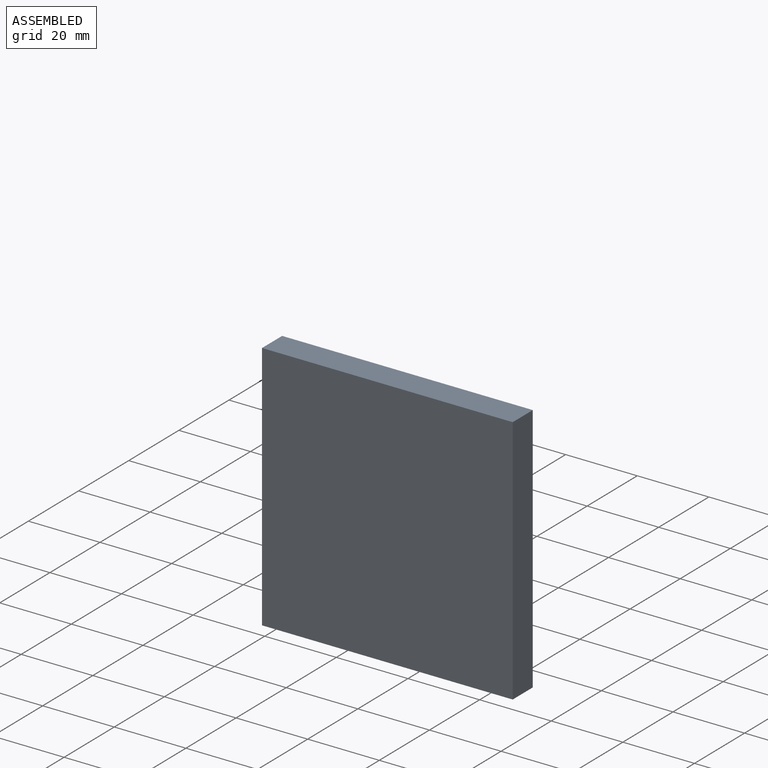
[diagram: assembled view]
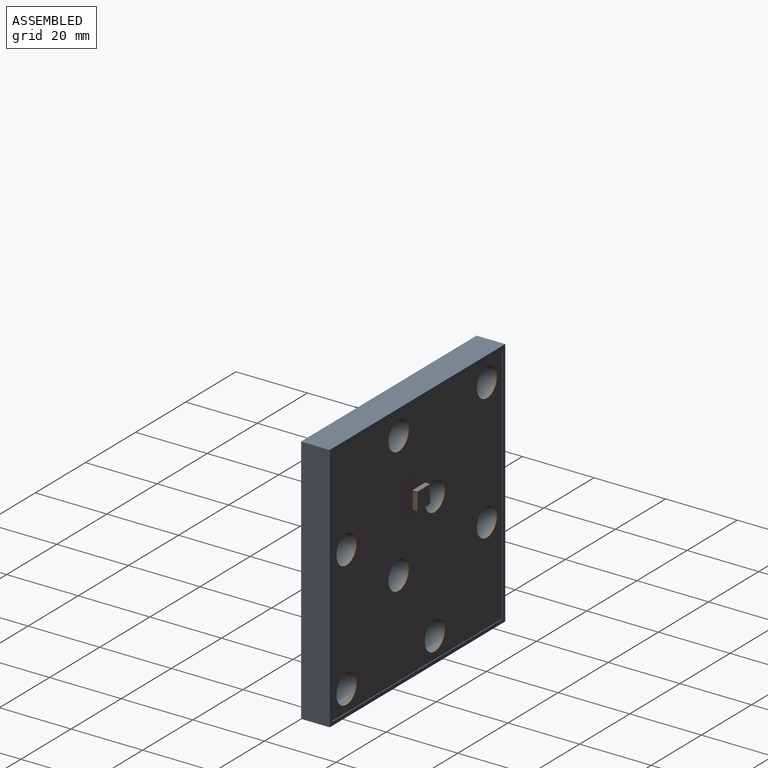
[diagram: assembled view, second angle]
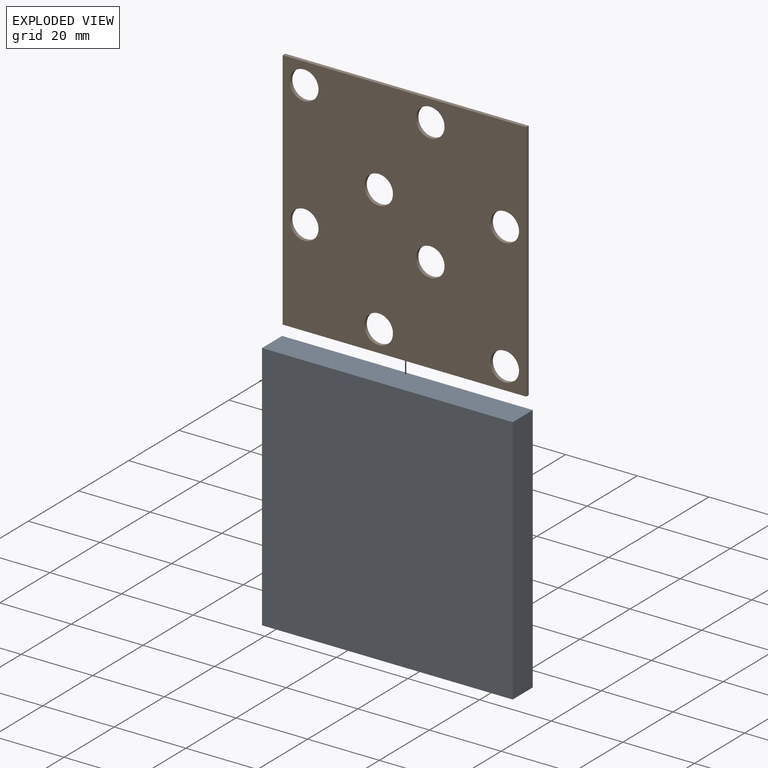
[diagram: exploded view]
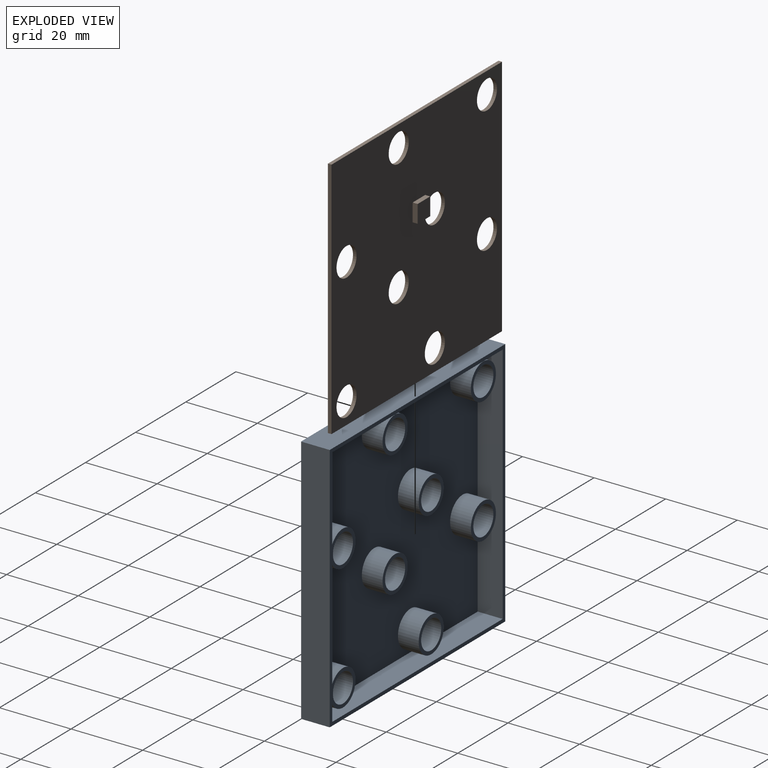
[diagram: exploded view, second angle]
ASSEMBLY  parts=2 mates=3
PART A: 43 faces, bbox 70x8x70 mm
  f0: plane 70x70mm, normal (0,1,0), area 276mm2, adj f1,f2,f3,f4,f6,f7,f8,f9
  f1: plane 70x8mm, normal (0,0,-1), area 560mm2, adj f0,f2,f4,f5
  f2: plane 70x8mm, normal (1,0,0), area 560mm2, adj f0,f1,f3,f5
  f3: plane 70x8mm, normal (0,0,1), area 560mm2, adj f0,f2,f4,f5
  f4: plane 70x8mm, normal (-1,0,0), area 560mm2, adj f0,f1,f3,f5
  f5: plane 70x70mm, normal (0,-1,0), area 4900mm2, adj f1,f2,f3,f4
  f6: plane 68x7mm, normal (0,0,1), area 476mm2, adj f0,f7,f9,f10
  f7: plane 68x7mm, normal (-1,0,0), area 476mm2, adj f0,f6,f8,f10
  f8: plane 68x7mm, normal (0,0,-1), area 476mm2, adj f0,f7,f9,f10
  f9: plane 68x7mm, normal (1,0,0), area 476mm2, adj f0,f6,f8,f10
  f10: plane 68x68mm, normal (0,1,0), area 3995.7mm2, adj f6,f7,f8,f9,f12,f16,f20,f24
  f11: cylinder r=4mm len=8mm, axis (0,-1,0), area 145.8mm2, adj f13,f14
  f12: cylinder r=5mm len=10mm, axis (0,-1,0), area 182.2mm2, adj f10,f13
  f13: plane 10x10mm, normal (0,1,0), area 28.3mm2, adj f11,f12
  f14: plane 8x8mm, normal (0,1,0), area 50.3mm2, adj f11
  f15: cylinder r=4mm len=8mm, axis (0,-1,0), area 145.8mm2, adj f17,f18
  f16: cylinder r=5mm len=10mm, axis (0,-1,0), area 182.2mm2, adj f10,f17
  f17: plane 10x10mm, normal (0,1,0), area 28.3mm2, adj f15,f16
  f18: plane 8x8mm, normal (0,1,0), area 50.3mm2, adj f15
  f19: cylinder r=4mm len=8mm, axis (0,-1,0), area 145.8mm2, adj f21,f22
  f20: cylinder r=5mm len=10mm, axis (0,-1,0), area 182.2mm2, adj f10,f21
  f21: plane 10x10mm, normal (0,1,0), area 28.3mm2, adj f19,f20
  f22: plane 8x8mm, normal (0,1,0), area 50.3mm2, adj f19
  f23: cylinder r=4mm len=8mm, axis (0,-1,0), area 145.8mm2, adj f25,f26
  f24: cylinder r=5mm len=10mm, axis (0,-1,0), area 182.2mm2, adj f10,f25
  f25: plane 10x10mm, normal (0,1,0), area 28.3mm2, adj f23,f24
  f26: plane 8x8mm, normal (0,1,0), area 50.3mm2, adj f23
  f27: cylinder r=4mm len=8mm, axis (0,-1,0), area 145.8mm2, adj f29,f30
  f28: cylinder r=5mm len=10mm, axis (0,-1,0), area 182.2mm2, adj f10,f29
  f29: plane 10x10mm, normal (0,1,0), area 28.3mm2, adj f27,f28
  f30: plane 8x8mm, normal (0,1,0), area 50.3mm2, adj f27
  f31: cylinder r=4mm len=8mm, axis (0,-1,0), area 145.8mm2, adj f33,f34
  f32: cylinder r=5mm len=10mm, axis (0,-1,0), area 182.2mm2, adj f10,f33
  f33: plane 10x10mm, normal (0,1,0), area 28.3mm2, adj f31,f32
  f34: plane 8x8mm, normal (0,1,0), area 50.3mm2, adj f31
  f35: cylinder r=4mm len=8mm, axis (0,-1,0), area 145.8mm2, adj f37,f38
  f36: cylinder r=5mm len=10mm, axis (0,-1,0), area 182.2mm2, adj f10,f37
  f37: plane 10x10mm, normal (0,1,0), area 28.3mm2, adj f35,f36
  f38: plane 8x8mm, normal (0,1,0), area 50.3mm2, adj f35
  f39: cylinder r=4mm len=8mm, axis (0,-1,0), area 145.8mm2, adj f41,f42
  f40: cylinder r=5mm len=10mm, axis (0,-1,0), area 182.2mm2, adj f10,f41
  f41: plane 10x10mm, normal (0,1,0), area 28.3mm2, adj f39,f40
  f42: plane 8x8mm, normal (0,1,0), area 50.3mm2, adj f39
PART B: 20 faces, bbox 68x2.4x68 mm
  f0: plane 68x1mm, normal (1,0,0), area 68mm2, adj f1,f3,f4,f5
  f1: plane 68x1mm, normal (0,0,1), area 68mm2, adj f0,f2,f4,f5
  f2: plane 68x1mm, normal (-1,0,0), area 68mm2, adj f1,f3,f4,f5
  f3: plane 68x1mm, normal (0,0,-1), area 68mm2, adj f0,f2,f4,f5
  f4: plane 68x68mm, normal (0,-1,0), area 4221.9mm2, adj f0,f1,f2,f3,f6,f7,f8,f9
  f5: plane 68x68mm, normal (0,1,0), area 4197mm2, adj f0,f1,f2,f3,f6,f7,f8,f9
  f6: cylinder r=4mm len=8mm, axis (0,1,0), area 25.1mm2, adj f4,f5
  f7: cylinder r=4mm len=8mm, axis (0,1,0), area 25.1mm2, adj f4,f5
  f8: cylinder r=4mm len=8mm, axis (0,1,0), area 25.1mm2, adj f4,f5
  f9: cylinder r=4mm len=8mm, axis (0,1,0), area 25.1mm2, adj f4,f5,f19
  f10: cylinder r=4mm len=8mm, axis (0,1,0), area 25.1mm2, adj f4,f5
  f11: cylinder r=4mm len=8mm, axis (0,1,0), area 25.1mm2, adj f4,f5
  f12: cylinder r=4mm len=8mm, axis (0,1,0), area 25.1mm2, adj f4,f5
  f13: cylinder r=4mm len=8mm, axis (0,1,0), area 25.1mm2, adj f4,f5
  f14: plane 5x1.4mm, normal (1,0,0), area 7mm2, adj f5,f15,f17,f18
  f15: plane 5x1.4mm, normal (0,0,-1), area 7mm2, adj f5,f14,f16,f18,f19
  f16: plane 5x1.4mm, normal (-1,0,0), area 7mm2, adj f5,f15,f17,f18,f19
  f17: plane 5x1.4mm, normal (0,0,1), area 7mm2, adj f5,f14,f16,f18
  f18: plane 5x5mm, normal (0,1,0), area 25mm2, adj f14,f15,f16,f17
  f19: plane 1.2x0.15mm, normal (0,-1,0), area 0.1mm2, adj f9,f15,f16
PLACE A t=(12.98,29.83,-8.99)mm
PLACE B t=(12.98,29.63,-8.99)mm
MATE planar B.f1 <-> A.f8  axis (0,0,1) through (12.98,29.13,25.01)mm
MATE planar A.f11 <-> B.f4  axis (0,1,0) through (-15.02,28.63,19.01)mm
MATE planar B.f0 <-> A.f7  axis (1,0,0) through (46.98,29.13,-8.99)mm
